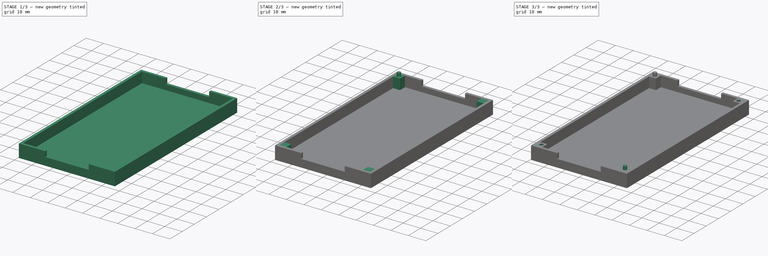
[diagram: build sequence overview — one tinted view per stage of 3, left to right]
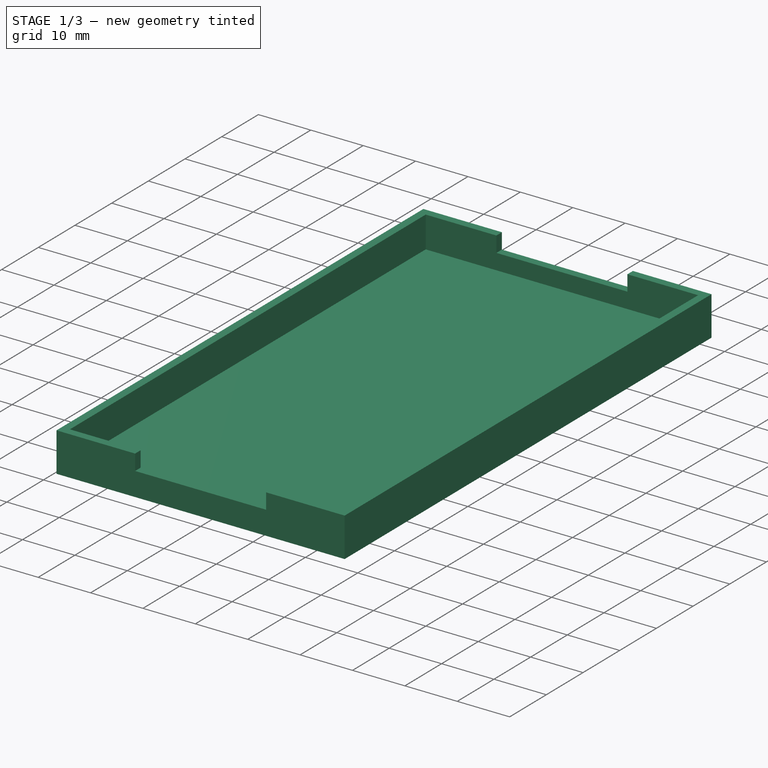
[diagram: stage 1 of 3 — iso view after this stage's code; geometry added in this stage tinted green]
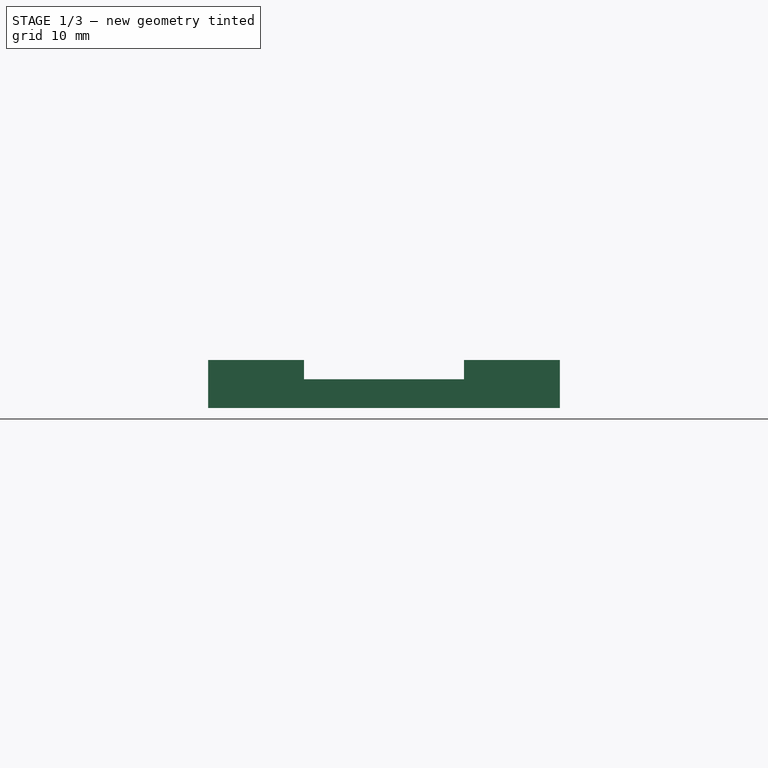
[diagram: stage 1 of 3 — front view after this stage's code; geometry added in this stage tinted green]
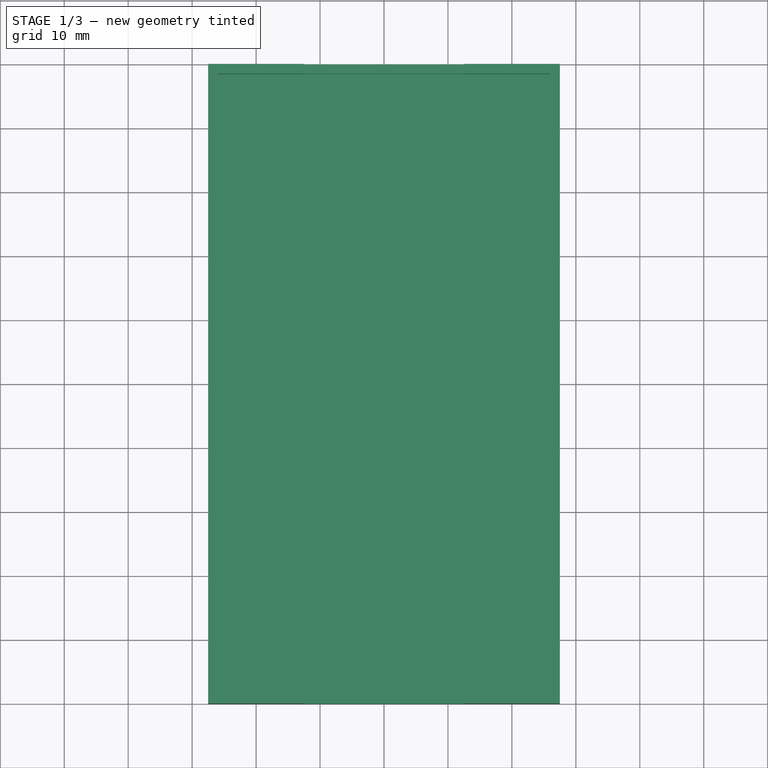
[diagram: stage 1 of 3 — top view after this stage's code; geometry added in this stage tinted green]
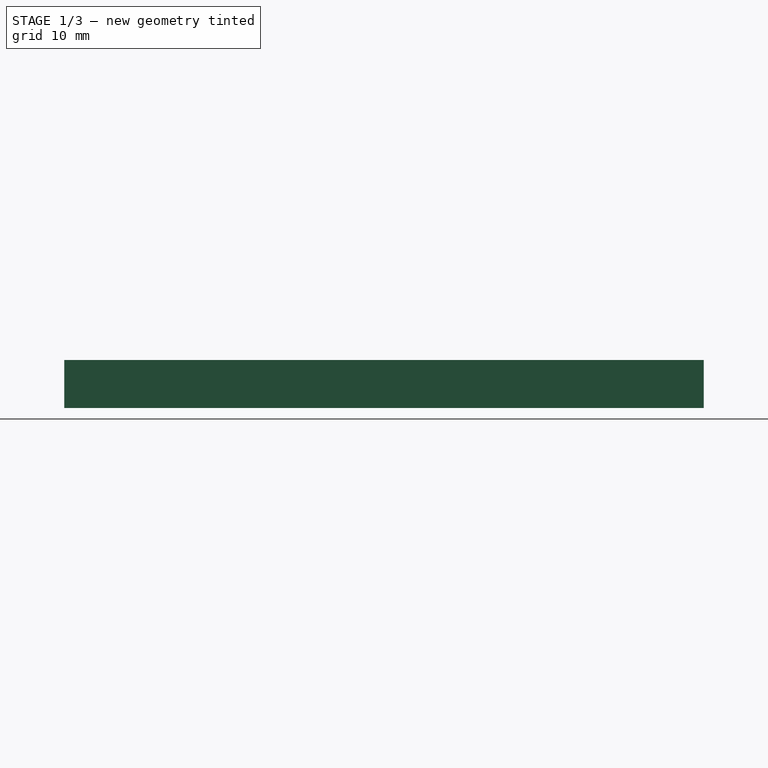
[diagram: stage 1 of 3 — right view after this stage's code; geometry added in this stage tinted green]
FCSTD DOCUMENT  (FreeCAD 0.20R29410 (Git))
Label: ServoSixCase
License: All rights reserved
LicenseURL: http://en.wikipedia.org/wiki/All_rights_reserved
objects: Sketcher::SketchObject×8, PartDesign::Pad×5, PartDesign::Pocket×3, PartDesign::Body×1
note: 25 computed .brp shape members not serialized (recipe doc carries the construction recipe); baked Part::Feature solids carry a one-line shape summary decoded from their .brp

FEATURE [Sketcher::SketchObject] Sketch
  FullyConstrained = true
  MapMode = 5
  Support = -> [XY_Plane]
  sketch-geometry (4):
    g0: LineSegment StartX=-27.5 StartY=50 StartZ=0 EndX=27.5 EndY=50 EndZ=0
    g1: LineSegment StartX=27.5 StartY=50 StartZ=0 EndX=27.5 EndY=-50 EndZ=0
    g2: LineSegment StartX=27.5 StartY=-50 StartZ=0 EndX=-27.5 EndY=-50 EndZ=0
    g3: LineSegment StartX=-27.5 StartY=-50 StartZ=0 EndX=-27.5 EndY=50 EndZ=0
  constraints (10):
    c: Coincident(g0,g1)
    c: Coincident(g1,g2)
    c: Coincident(g2,g3)
    c: Coincident(g3,g0)
    c: Horizontal(g2)
    c: Vertical(g3)
    c: Symmetric(g0,g0,g-2)
    c: Symmetric(g0,g1,g-1)
    c: DistanceX(g0,g0) = 55
    c: DistanceY(g1,g1) = 100
FEATURE [PartDesign::Pad] Pad
  Direction = (0,0,1)
  Length = 1.5
  Length2 = 10
  Profile = -> Sketch
  ReferenceAxis = -> Sketch [N_Axis]
  Type = 0
FEATURE [Sketcher::SketchObject] Sketch001
  ExternalGeometry = -> [Pad]
  FullyConstrained = true
  MapMode = 5
  Placement = pos=(0,0,1.5) rot=(0,0,1;0rad)
  Support = -> [Pad]
  sketch-geometry (8):
    g0: LineSegment StartX=-26 StartY=48.5 StartZ=0 EndX=26 EndY=48.5 EndZ=0
    g1: LineSegment StartX=26 StartY=48.5 StartZ=0 EndX=26 EndY=-48.5 EndZ=0
    g2: LineSegment StartX=26 StartY=-48.5 StartZ=0 EndX=-26 EndY=-48.5 EndZ=0
    g3: LineSegment StartX=-26 StartY=-48.5 StartZ=0 EndX=-26 EndY=48.5 EndZ=0
    g4: LineSegment StartX=-27.5 StartY=50 StartZ=0 EndX=27.5 EndY=50 EndZ=0
    g5: LineSegment StartX=27.5 StartY=50 StartZ=0 EndX=27.5 EndY=-50 EndZ=0
    g6: LineSegment StartX=27.5 StartY=-50 StartZ=0 EndX=-27.5 EndY=-50 EndZ=0
    g7: LineSegment StartX=-27.5 StartY=-50 StartZ=0 EndX=-27.5 EndY=50 EndZ=0
  constraints (20):
    c: Coincident(g0,g1)
    c: Coincident(g1,g2)
    c: Coincident(g2,g3)
    c: Coincident(g3,g0)
    c: Horizontal(g2)
    c: Vertical(g3)
    c: Symmetric(g0,g0,g-2)
    c: Symmetric(g0,g1,g-1)
    c: DistanceY(g0,g-4) = 1.5
    c: DistanceX(g0,g-4) = 1.5
    c: Coincident(g4,g5)
    c: Coincident(g5,g6)
    c: Coincident(g6,g7)
    c: Coincident(g7,g4)
    c: Horizontal(g4)
    c: Horizontal(g6)
    c: Vertical(g5)
    c: Vertical(g7)
    c: Coincident(g4,g-6)
    c: Coincident(g5,g-5)
FEATURE [PartDesign::Pad] Pad001
  BaseFeature = -> Pad
  Direction = (0,0,1)
  Length = 6
  Length2 = 10
  Profile = -> Sketch001
  ReferenceAxis = -> Sketch001 [N_Axis]
  Type = 0
FEATURE [Sketcher::SketchObject] Sketch002
  ExternalGeometry = -> [Pad001]
  FullyConstrained = true
  MapMode = 5
  Placement = pos=(0,0,7.5) rot=(0,0,1;0rad)
  Support = -> [Pad001]
  sketch-geometry (8):
    g0: LineSegment StartX=-12.5 StartY=50 StartZ=0 EndX=12.5 EndY=50 EndZ=0
    g1: LineSegment StartX=12.5 StartY=50 StartZ=0 EndX=12.5 EndY=48.5 EndZ=0
    g2: LineSegment StartX=12.5 StartY=48.5 StartZ=0 EndX=-12.5 EndY=48.5 EndZ=0
    g3: LineSegment StartX=-12.5 StartY=48.5 StartZ=0 EndX=-12.5 EndY=50 EndZ=0
    g4: LineSegment StartX=-12.5 StartY=-48.5 StartZ=0 EndX=12.5 EndY=-48.5 EndZ=0
    g5: LineSegment StartX=12.5 StartY=-48.5 StartZ=0 EndX=12.5 EndY=-50 EndZ=0
    g6: LineSegment StartX=12.5 StartY=-50 StartZ=0 EndX=-12.5 EndY=-50 EndZ=0
    g7: LineSegment StartX=-12.5 StartY=-50 StartZ=0 EndX=-12.5 EndY=-48.5 EndZ=0
  constraints (22):
    c: Coincident(g0,g1)
    c: Coincident(g1,g2)
    c: Coincident(g2,g3)
    c: Coincident(g3,g0)
    c: Horizontal(g2)
    c: Vertical(g1)
    c: Vertical(g3)
    c: PointOnObject(g0,g-3)
    c: PointOnObject(g1,g-4)
    c: Symmetric(g0,g0,g-2)
    c: DistanceX(g0,g0) = 25
    c: Coincident(g4,g5)
    c: Coincident(g5,g6)
    c: Coincident(g6,g7)
    c: Coincident(g7,g4)
    c: Horizontal(g6)
    c: Vertical(g5)
    c: Vertical(g7)
    c: PointOnObject(g4,g-5)
    c: PointOnObject(g5,g-6)
    c: Symmetric(g4,g4,g-2)
    c: Equal(g0,g6)
FEATURE [PartDesign::Pocket] Pocket
  BaseFeature = -> Pad001
  Direction = (0,0,-1)
  Length = 3
  Length2 = 5
  Profile = -> Sketch002
  ReferenceAxis = -> Sketch002 [N_Axis]
  Type = 0
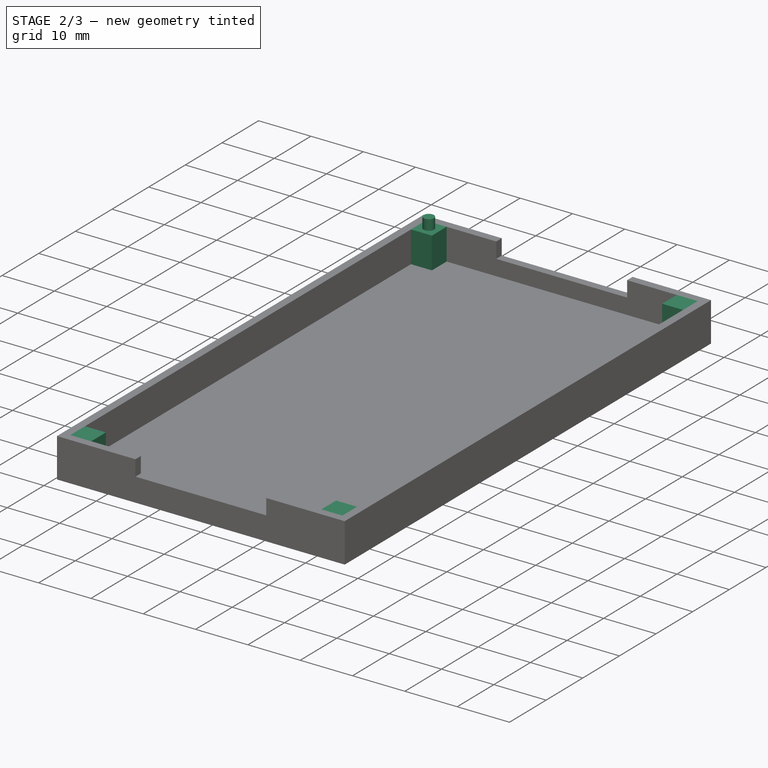
[diagram: stage 2 of 3 — iso view after this stage's code; geometry added in this stage tinted green]
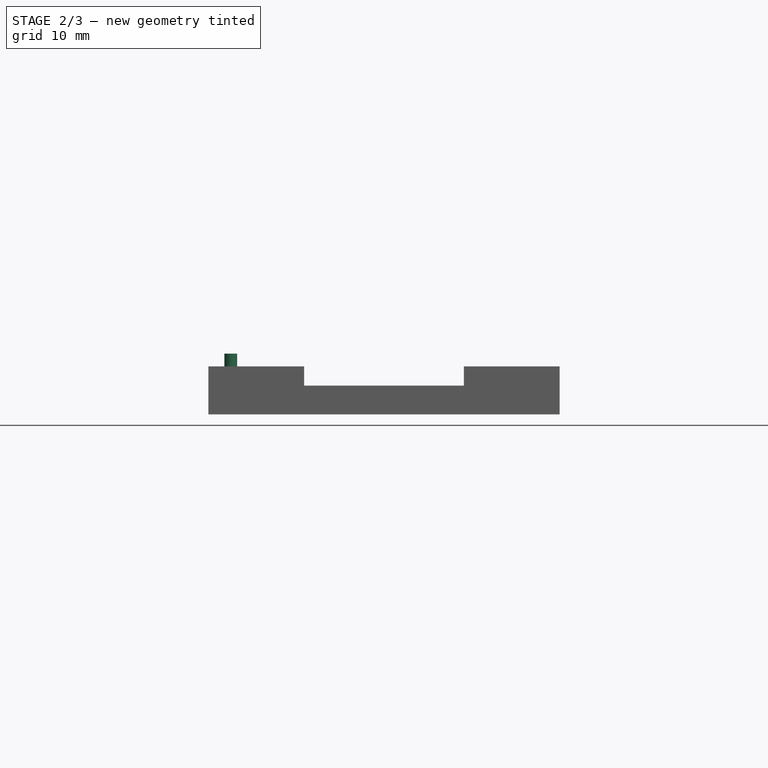
[diagram: stage 2 of 3 — front view after this stage's code; geometry added in this stage tinted green]
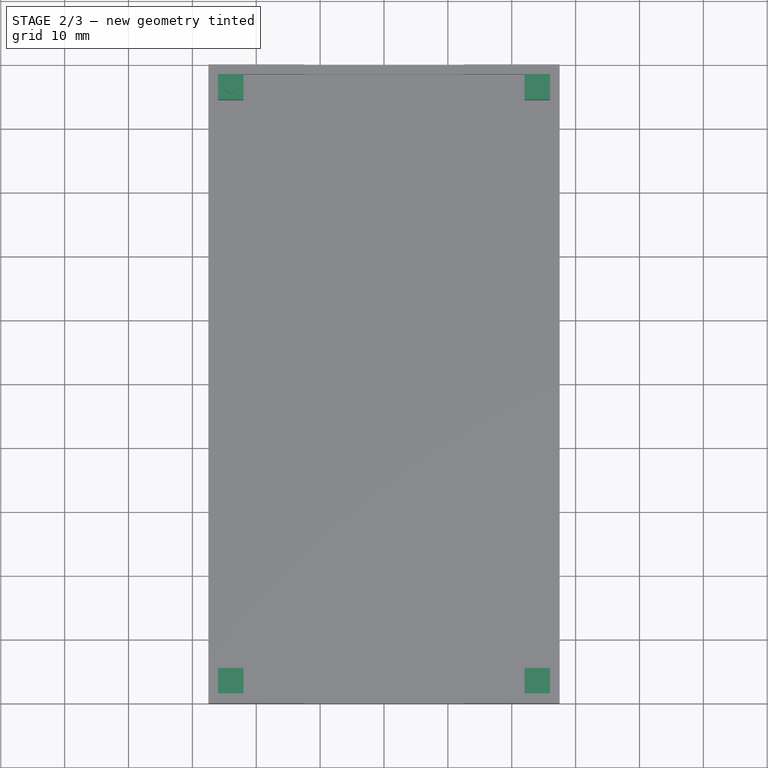
[diagram: stage 2 of 3 — top view after this stage's code; geometry added in this stage tinted green]
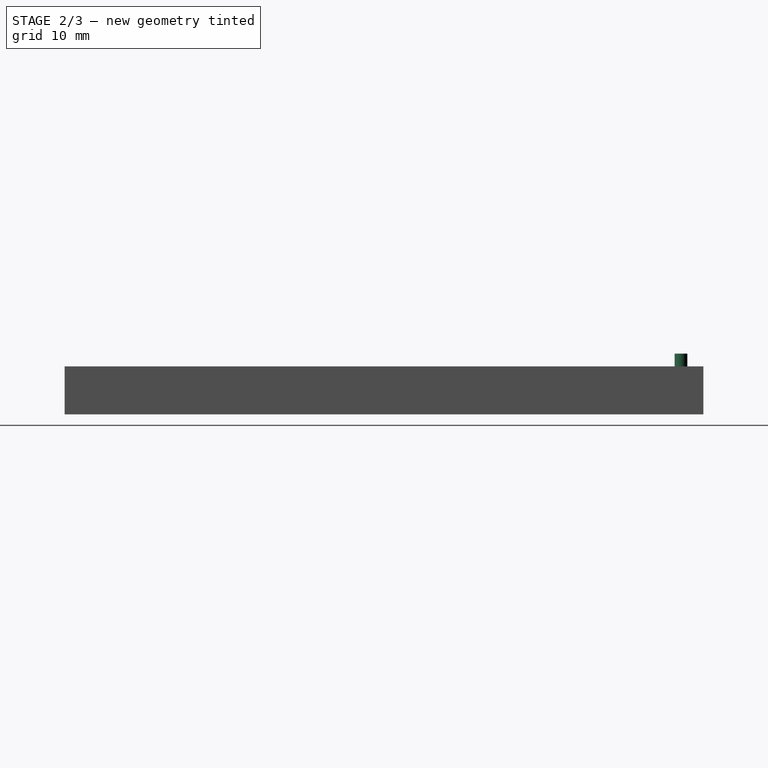
[diagram: stage 2 of 3 — right view after this stage's code; geometry added in this stage tinted green]
FEATURE [Sketcher::SketchObject] Sketch003
  ExternalGeometry = -> [Pocket]
  FullyConstrained = true
  MapMode = 5
  Placement = pos=(0,0,1.5) rot=(0,0,1;0rad)
  Support = -> [Pocket]
  sketch-geometry (16):
    g0: LineSegment StartX=-26 StartY=-48.5 StartZ=0 EndX=-22 EndY=-48.5 EndZ=0
    g1: LineSegment StartX=-22 StartY=-48.5 StartZ=0 EndX=-22 EndY=-44.5 EndZ=0
    g2: LineSegment StartX=-22 StartY=-44.5 StartZ=0 EndX=-26 EndY=-44.5 EndZ=0
    g3: LineSegment StartX=-26 StartY=-44.5 StartZ=0 EndX=-26 EndY=-48.5 EndZ=0
    g4: LineSegment StartX=26 StartY=-48.5 StartZ=0 EndX=22 EndY=-48.5 EndZ=0
    g5: LineSegment StartX=22 StartY=-48.5 StartZ=0 EndX=22 EndY=-44.5 EndZ=0
    g6: LineSegment StartX=22 StartY=-44.5 StartZ=0 EndX=26 EndY=-44.5 EndZ=0
    g7: LineSegment StartX=26 StartY=-44.5 StartZ=0 EndX=26 EndY=-48.5 EndZ=0
    g8: LineSegment StartX=26 StartY=48.5 StartZ=0 EndX=22 EndY=48.5 EndZ=0
    g9: LineSegment StartX=22 StartY=48.5 StartZ=0 EndX=22 EndY=44.5 EndZ=0
    g10: LineSegment StartX=22 StartY=44.5 StartZ=0 EndX=26 EndY=44.5 EndZ=0
    g11: LineSegment StartX=26 StartY=44.5 StartZ=0 EndX=26 EndY=48.5 EndZ=0
    g12: LineSegment StartX=-26 StartY=48.5 StartZ=0 EndX=-22 EndY=48.5 EndZ=0
    g13: LineSegment StartX=-22 StartY=48.5 StartZ=0 EndX=-22 EndY=44.5 EndZ=0
    g14: LineSegment StartX=-22 StartY=44.5 StartZ=0 EndX=-26 EndY=44.5 EndZ=0
    g15: LineSegment StartX=-26 StartY=44.5 StartZ=0 EndX=-26 EndY=48.5 EndZ=0
  constraints (44):
    c: Coincident(g0,g1)
    c: Coincident(g1,g2)
    c: Coincident(g2,g3)
    c: Coincident(g3,g0)
    c: Horizontal(g0)
    c: Horizontal(g2)
    c: Vertical(g1)
    c: Vertical(g3)
    c: Coincident(g0,g-8)
    c: Coincident(g4,g5)
    c: Coincident(g5,g6)
    c: Coincident(g6,g7)
    c: Coincident(g7,g4)
    c: Horizontal(g4)
    c: Horizontal(g6)
    c: Vertical(g5)
    c: Vertical(g7)
    c: Coincident(g4,g-7)
    c: Coincident(g8,g9)
    c: Coincident(g9,g10)
    c: Coincident(g10,g11)
    c: Coincident(g11,g8)
    c: Horizontal(g8)
    c: Horizontal(g10)
    c: Vertical(g9)
    c: Vertical(g11)
    c: Coincident(g8,g-6)
    c: Coincident(g12,g13)
    c: Coincident(g13,g14)
    c: Coincident(g14,g15)
    c: Coincident(g15,g12)
    c: Horizontal(g12)
    c: Horizontal(g14)
    c: Vertical(g13)
    c: Vertical(g15)
    c: Coincident(g12,g-4)
    c: Equal(g1,g5)
    c: Equal(g6,g2)
    c: Equal(g6,g10)
    c: Equal(g9,g5)
    c: Equal(g13,g9)
    c: Equal(g14,g10)
    c: DistanceY(g1,g1) = 4
    c: DistanceX(g2,g2) = 4
FEATURE [PartDesign::Pad] Pad002
  BaseFeature = -> Pocket
  Direction = (0,0,1)
  Length = 6
  Length2 = 10
  Profile = -> Sketch003
  ReferenceAxis = -> Sketch003 [N_Axis]
  Type = 0
FEATURE [Sketcher::SketchObject] Sketch004
  ExternalGeometry = -> [Pad002]
  FullyConstrained = true
  MapMode = 5
  Placement = pos=(0,0,7.5) rot=(0,0,1;0rad)
  Support = -> [Pad002]
  sketch-geometry (1):
    g0: Circle CenterX=-24 CenterY=46.5 CenterZ=0 NormalX=0 NormalY=0 NormalZ=1 AngleXU=0 Radius=1
  constraints (3):
    c: DistanceX(g0,g-6) = 2
    c: DistanceY(g0,g-6) = 2
    c: Diameter(g0) = 2
FEATURE [PartDesign::Pad] Pad003
  BaseFeature = -> Pad002
  Direction = (0,0,1)
  Length = 2
  Length2 = 10
  Profile = -> Sketch004
  ReferenceAxis = -> Sketch004 [N_Axis]
  Type = 0
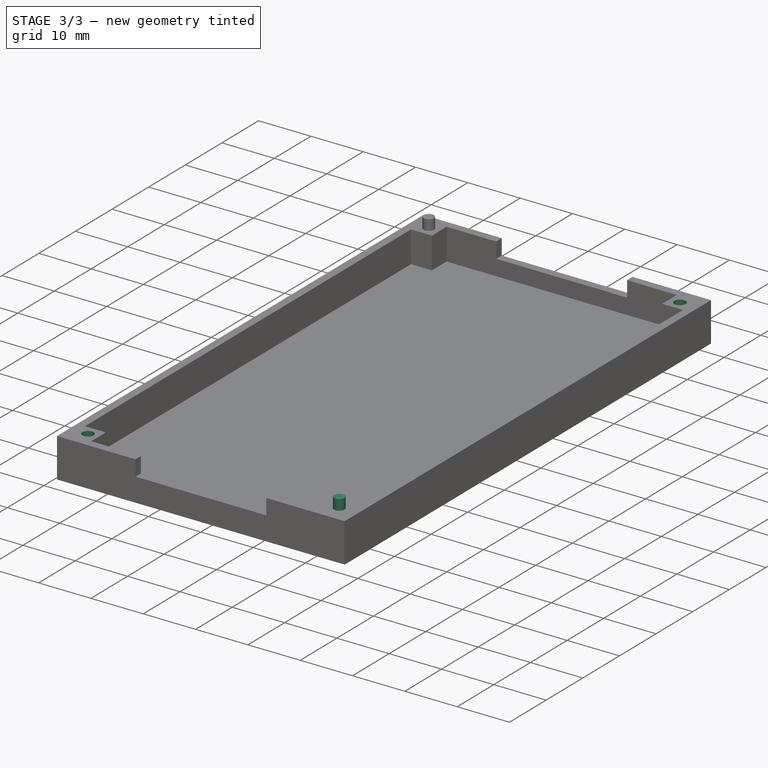
[diagram: stage 3 of 3 — iso view after this stage's code; geometry added in this stage tinted green]
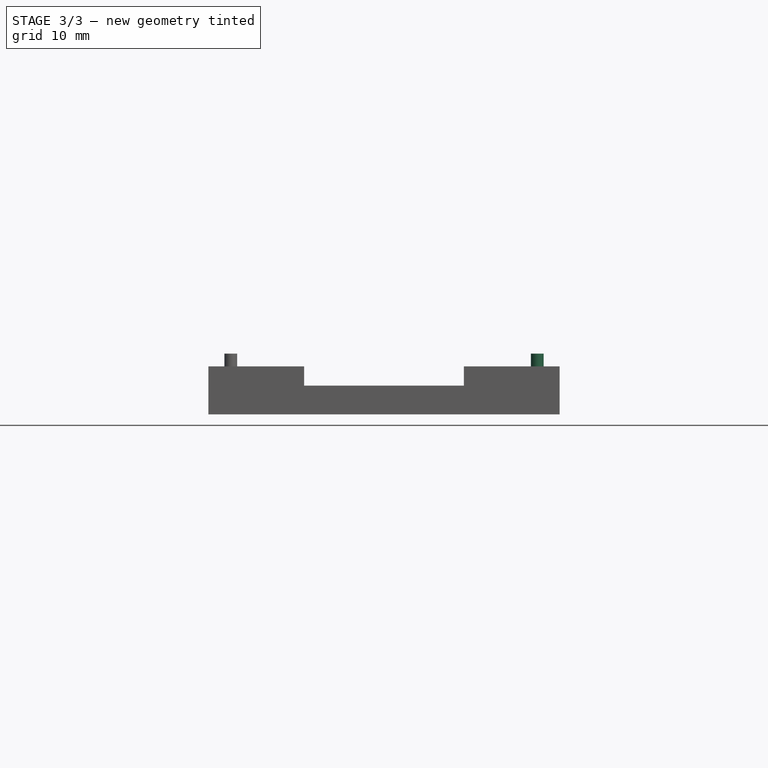
[diagram: stage 3 of 3 — front view after this stage's code; geometry added in this stage tinted green]
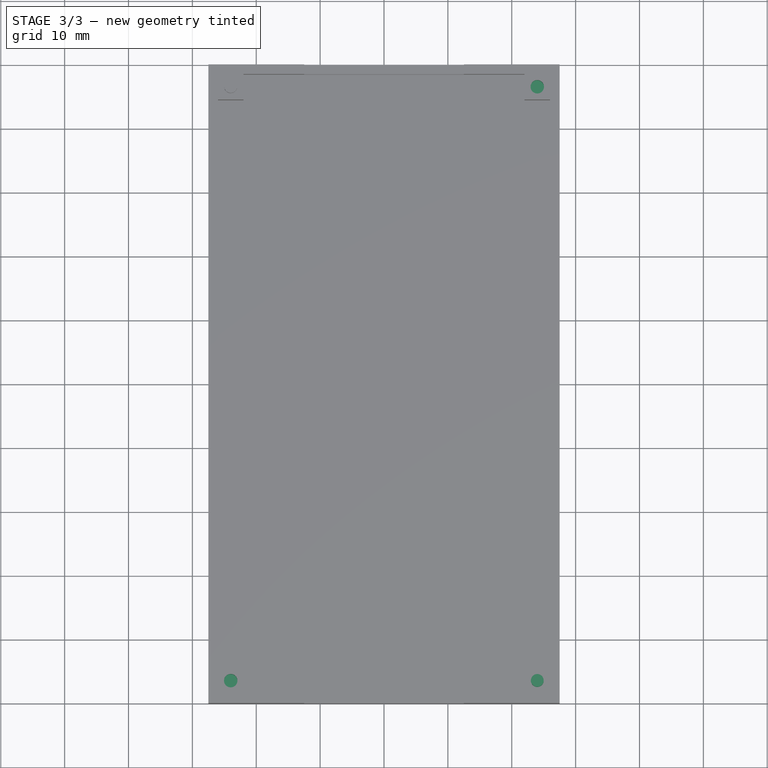
[diagram: stage 3 of 3 — top view after this stage's code; geometry added in this stage tinted green]
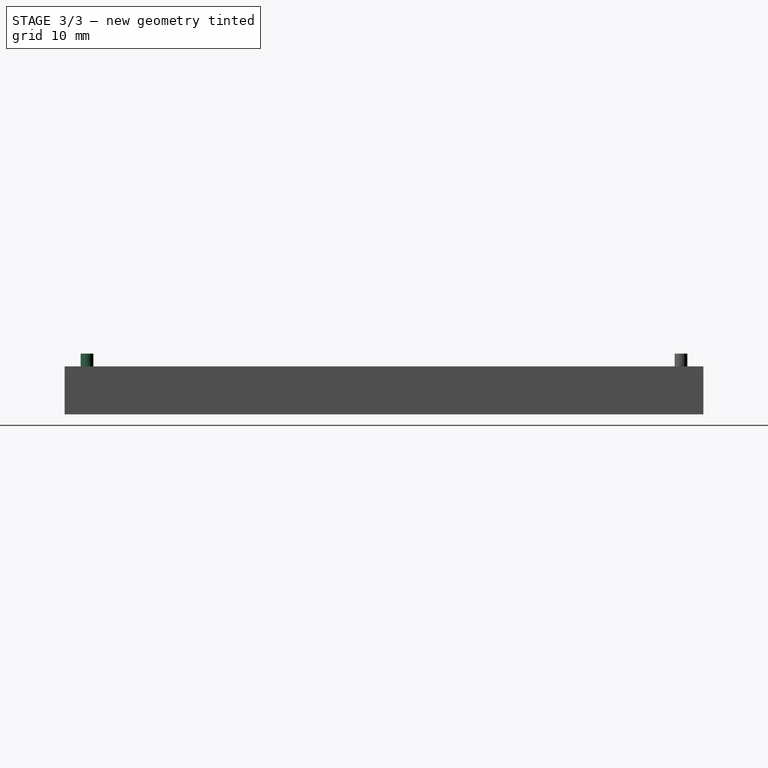
[diagram: stage 3 of 3 — right view after this stage's code; geometry added in this stage tinted green]
FEATURE [Sketcher::SketchObject] Sketch005
  ExternalGeometry = -> [Pad003]
  FullyConstrained = true
  MapMode = 5
  Placement = pos=(0,0,7.5) rot=(0,0,1;0rad)
  Support = -> [Pad003]
  sketch-geometry (1):
    g0: Circle CenterX=24 CenterY=-46.5 CenterZ=0 NormalX=0 NormalY=0 NormalZ=1 AngleXU=0 Radius=1
  constraints (3):
    c: DistanceX(g0,g-4) = 2
    c: DistanceY(g0,g-4) = 2
    c: Diameter(g0) = 2
FEATURE [PartDesign::Pad] Pad004
  BaseFeature = -> Pad003
  Direction = (0,0,1)
  Length = 2
  Length2 = 10
  Profile = -> Sketch005
  ReferenceAxis = -> Sketch005 [N_Axis]
  Type = 0
FEATURE [Sketcher::SketchObject] Sketch006
  ExternalGeometry = -> [Pad004]
  FullyConstrained = true
  MapMode = 5
  Placement = pos=(0,0,7.5) rot=(0,0,1;0rad)
  Support = -> [Pad004]
  sketch-geometry (1):
    g0: Circle CenterX=24 CenterY=46.5 CenterZ=0 NormalX=0 NormalY=0 NormalZ=1 AngleXU=0 Radius=1.05
  constraints (3):
    c: DistanceX(g0,g-3) = 2
    c: DistanceY(g0,g-3) = 2
    c: Diameter(g0) = 2.1
FEATURE [PartDesign::Pocket] Pocket001
  BaseFeature = -> Pad004
  Direction = (0,0,-1)
  Length = 2.5
  Length2 = 5
  Profile = -> Sketch006
  ReferenceAxis = -> Sketch006 [N_Axis]
  Type = 0
FEATURE [Sketcher::SketchObject] Sketch007
  ExternalGeometry = -> [Pocket001]
  FullyConstrained = true
  MapMode = 5
  Placement = pos=(0,0,7.5) rot=(0,0,1;0rad)
  Support = -> [Pocket001]
  sketch-geometry (1):
    g0: Circle CenterX=-24 CenterY=-46.5 CenterZ=0 NormalX=0 NormalY=0 NormalZ=1 AngleXU=0 Radius=1.05
  constraints (3):
    c: DistanceX(g-3,g0) = 2
    c: DistanceY(g-3,g0) = 2
    c: Diameter(g0) = 2.1
FEATURE [PartDesign::Pocket] Pocket002
  BaseFeature = -> Pocket001
  Direction = (0,0,-1)
  Length = 2.5
  Length2 = 5
  Profile = -> Sketch007
  ReferenceAxis = -> Sketch007 [N_Axis]
  Type = 0
FEATURE [PartDesign::Body] Body
  Group = -> [Sketch,Pad,Sketch001,Pad001,Sketch002,Pocket,Sketch003,Pad002,Sketch004,Pad003,Sketch005,Pad004,Sketch006,Pocket001,Sketch007,Pocket002]
  Origin = -> Origin
  Tip = -> Pocket002
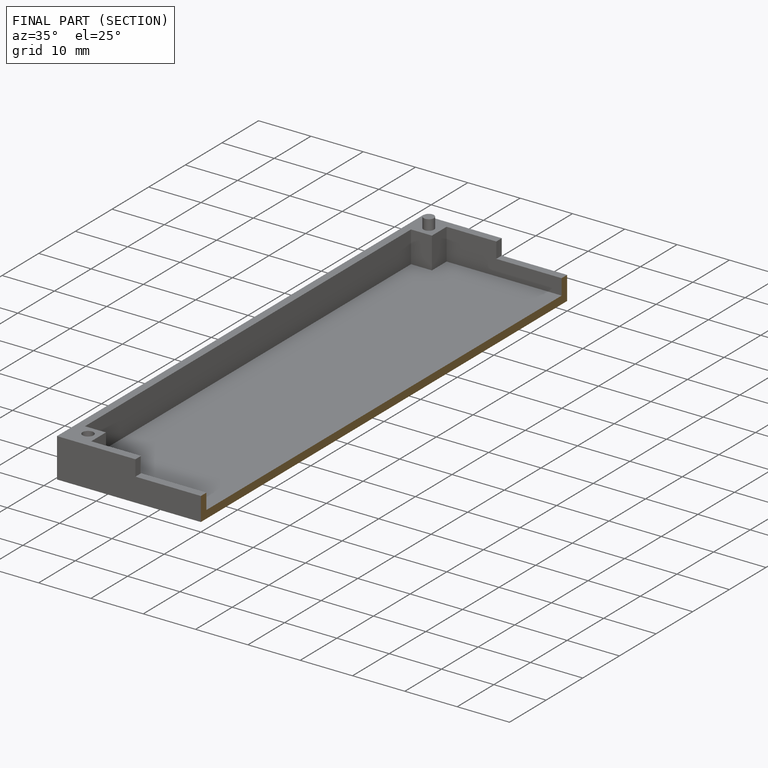
[diagram: finished part — half-section view (interior)]
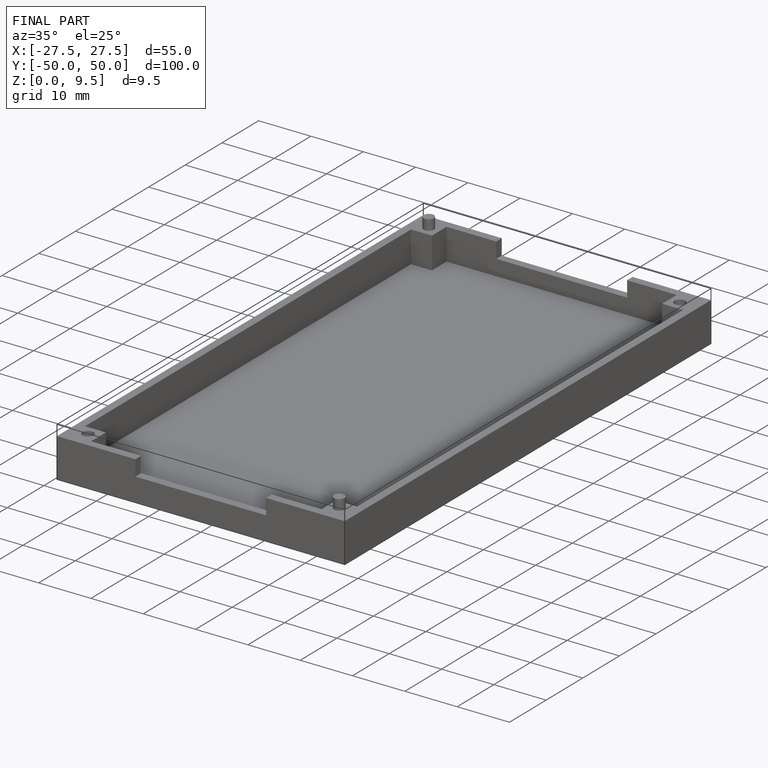
[diagram: finished part — iso view with bounding-box wireframe]
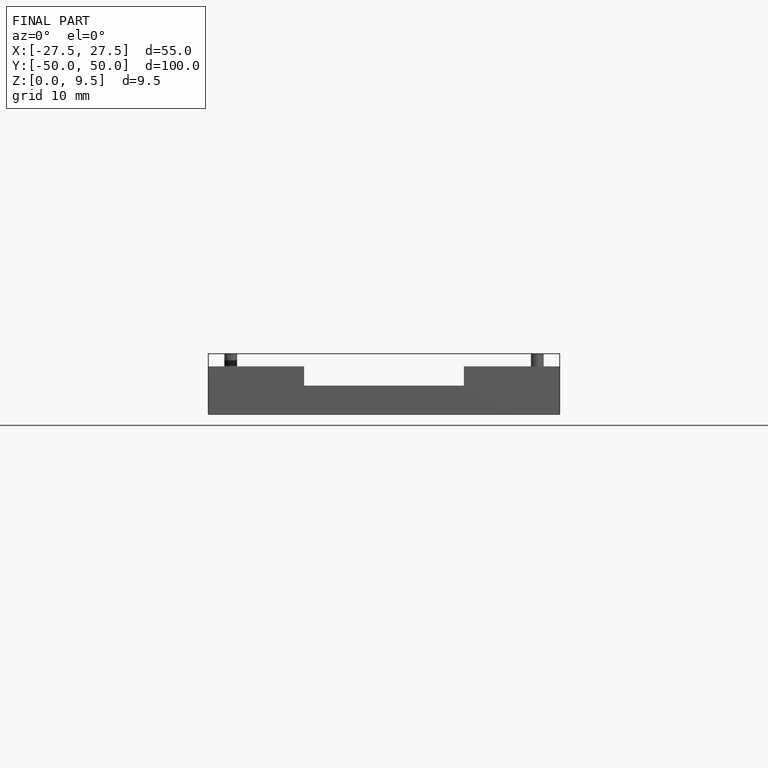
[diagram: finished part — front view with bounding-box wireframe]
